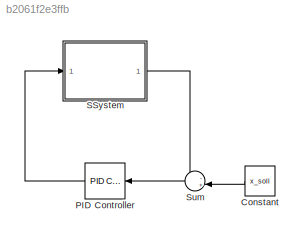
MODEL slx_b2061f2e3ffb
KIND model
BLOCK [Constant] Constant
  Value = x_soll
BLOCK [Reference] PID Controller  REF=simulink/Continuous/PID Controller
  AntiWindupMode = none
  Controller = PID
  ControllerParametersSource = internal
  D = 88.1677030624935
  DGainOutDataTypeStr = Inherit: Inherit via internal rule
  DOutMax = []
  DOutMin = []
  DParamDataTypeStr = Inherit: Inherit via internal rule
  DParamMax = []
  DParamMin = []
  DProdOutDataTypeStr = Inherit: Inherit via internal rule
  DifferentiatorICPrevScaledInput = 0
  DifferentiatorOutDataTypeStr = Inherit: Inherit via internal rule
  DifferentiatorOutMax = []
  DifferentiatorOutMin = []
  ExternalReset = none
  FilterContinuousStateAttributes = ''
  FilterMethod = Forward Euler
  FilterOutDataTypeStr = Inherit: Inherit via internal rule
  FilterOutMax = []
  FilterOutMin = []
  FilterRTWStateStorageClass = Auto
  FilterStateMustResolveToSignalObject = off
  Form = Parallel
  I = 10.2563359586177
  IGainOutDataTypeStr = Inherit: Inherit via internal rule
  IOutMax = []
  IOutMin = []
  IParamDataTypeStr = Inherit: Inherit via internal rule
  IParamMax = []
  IParamMin = []
  IProdOutDataTypeStr = Inherit: Inherit via internal rule
  IgnoreLimit = off
  InitialConditionForFilter = 0
  InitialConditionForIntegrator = 0
  InitialConditionSource = internal
  IntegratorContinuousStateAttributes = ''
  IntegratorMethod = Forward Euler
  IntegratorOutDataTypeStr = Inherit: Inherit via internal rule
  IntegratorOutMax = []
  IntegratorOutMin = []
  IntegratorRTWStateStorageClass = Auto
  IntegratorStateMustResolveToSignalObject = off
  Kb = 1
  KbOutDataTypeStr = Inherit: Inherit via internal rule
  KbOutMax = []
  KbOutMin = []
  KbParamDataTypeStr = Inherit: Inherit via internal rule
  KbParamMax = []
  KbParamMin = []
  Kt = 1
  KtOutDataTypeStr = Inherit: Inherit via internal rule
  KtOutMax = []
  KtOutMin = []
  KtParamDataTypeStr = Inherit: Inherit via internal rule
  KtParamMax = []
  KtParamMin = []
  LimitOutput = on
  LinearizeAsGain = off
  LockScale = off
  LowerSaturationLimit = -80
  N = 996.227139608466
  NGainOutDataTypeStr = Inherit: Inherit via internal rule
  NOutMax = []
  NOutMin = []
  NParamDataTypeStr = Inherit: Inherit via internal rule
  NParamMax = []
  NParamMin = []
  NProdOutDataTypeStr = Inherit: Inherit via internal rule
  P = 141.186500513683
  PGainOutDataTypeStr = Inherit: Inherit via internal rule
  POutMax = []
  POutMin = []
  PParamDataTypeStr = Inherit: Inherit via internal rule
  PParamMax = []
  PParamMin = []
  PProdOutDataTypeStr = Inherit: Inherit via internal rule
  Ports = [1, 1]
  RndMeth = Floor
  SampleTime = -1
  SaturateOnIntegerOverflow = off
  SaturationOutDataTypeStr = Inherit: Same as input
  SaturationOutMax = []
  SaturationOutMin = []
  SourceBlock = simulink/Continuous/PID Controller
  SourceType = PID 1dof
  SumAccumDataTypeStr = Inherit: Inherit via internal rule
  SumDAccumDataTypeStr = Inherit: Inherit via internal rule
  SumDOutDataTypeStr = Inherit: Inherit via internal rule
  SumDOutMax = []
  SumDOutMin = []
  SumI1AccumDataTypeStr = Inherit: Inherit via internal rule
  SumI1OutDataTypeStr = Inherit: Inherit via internal rule
  SumI1OutMax = []
  SumI1OutMin = []
  SumI2AccumDataTypeStr = Inherit: Inherit via internal rule
  SumI2OutDataTypeStr = Inherit: Inherit via internal rule
  SumI2OutMax = []
  SumI2OutMin = []
  SumI3AccumDataTypeStr = Inherit: Inherit via internal rule
  SumI3OutDataTypeStr = Inherit: Inherit via internal rule
  SumI3OutMax = []
  SumI3OutMin = []
  SumOutDataTypeStr = Inherit: Inherit via internal rule
  SumOutMax = []
  SumOutMin = []
  TimeDomain = Continuous-time
  TrackingMode = off
  UpperSaturationLimit = 80
  UseFilter = on
  ZeroCross = on
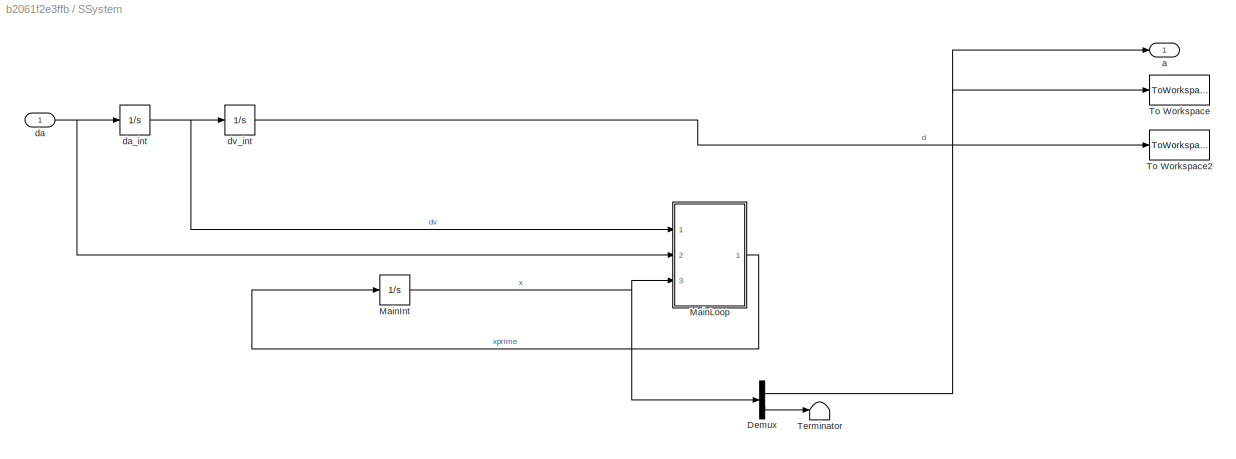
BLOCK [SubSystem] SSystem
  FunctionWithSeparateData = off
  MaskHideContents = off
  MinAlgLoopOccurrences = off
  Opaque = off
  Ports = [1, 1]
  PropExecContextOutsideSubsystem = off
  RTWSystemCode = Auto
  RequestExecContextInheritance = off
BLOCK [Demux] SSystem/Demux
  DisplayOption = bar
  Outputs = 2
  Ports = [1, 2]
BLOCK [Integrator] SSystem/MainInt
  InitialCondition = x_initial
  Ports = [1, 1]
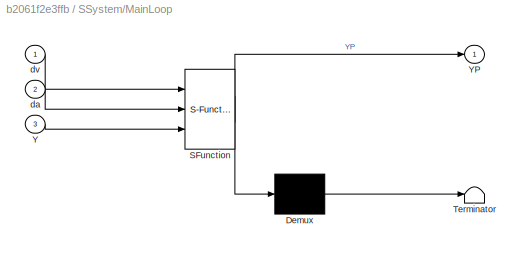
BLOCK [SubSystem] SSystem/MainLoop
  ErrorFcn = Stateflow.Translate.translate
  FunctionWithSeparateData = off
  MaskDescription = Embedded MATLAB block
  MaskDisplay = bgColor = Simulink.Root.ColorString2Rgb(get_param(gcbh, 'BackgroundColor')); image(imread('private/eml_membrane_16.png','png','BackgroundColor',bgColor(1:3)),'center'); disp([10 10 'MainLoop']);
  MaskHideContents = off
  MaskIconFrame = on
  MaskIconOpaque = off
  MaskIconRotate = none
  MaskIconUnits = normalized
  MaskPortRotate = default
  MaskSelfModifiable = on
  MaskType = Stateflow
  MinAlgLoopOccurrences = off
  Opaque = off
  PermitHierarchicalResolution = ParametersOnly
  Ports = [3, 1]
  PropExecContextOutsideSubsystem = off
  RTWSystemCode = Auto
  RequestExecContextInheritance = off
  SFBlockType = MATLAB Function
  TreatAsAtomicUnit = on
BLOCK [Demux] SSystem/MainLoop/ Demux 
  Outputs = 1
  Ports = [1, 1]
BLOCK [S-Function] SSystem/MainLoop/ SFunction 
  EnableBusSupport = on
  FunctionName = sf_sfun
  PortCounts = [3 2]
  Ports = [3, 2]
  SFunctionDeploymentMode = off
  Tag = Stateflow S-Function PID_Sim_2012a 2
BLOCK [Terminator] SSystem/MainLoop/ Terminator 
BLOCK [Inport] SSystem/MainLoop/Y
  IconDisplay = Port number
  Port = 3
BLOCK [Outport] SSystem/MainLoop/YP
  IconDisplay = Port number
BLOCK [Inport] SSystem/MainLoop/da
  IconDisplay = Port number
  Port = 2
BLOCK [Inport] SSystem/MainLoop/dv
  IconDisplay = Port number
BLOCK [Terminator] SSystem/Terminator
BLOCK [ToWorkspace] SSystem/To Workspace
  FixptAsFi = on
  MaxDataPoints = inf
  Ports = [1]
  SampleTime = -1
  SaveFormat = Timeseries
  VariableName = a
BLOCK [ToWorkspace] SSystem/To Workspace2
  FixptAsFi = on
  MaxDataPoints = inf
  Ports = [1]
  SampleTime = -1
  SaveFormat = Timeseries
  VariableName = d
BLOCK [Outport] SSystem/a
  IconDisplay = Port number
BLOCK [Inport] SSystem/da
  IconDisplay = Port number
BLOCK [Integrator] SSystem/da_int
  InitialCondition = d_initial(2)
  Ports = [1, 1]
BLOCK [Integrator] SSystem/dv_int
  InitialCondition = d_initial(1)
  Ports = [1, 1]
BLOCK [Sum] Sum
  IconShape = round
  InputSameDT = off
  Inputs = -+|
  OutDataTypeStr = Inherit: Inherit via internal rule
  Ports = [2, 1]
  SaturateOnIntegerOverflow = off
LINE Constant:1 -> Sum:2
LINE PID Controller:1 -> SSystem:1
NET SSystem/Demux:1 -> SSystem/To Workspace:1, SSystem/a:1
LINE SSystem/Demux:2 -> SSystem/Terminator:1
NET SSystem/MainInt:1 -> SSystem/Demux:1, SSystem/MainLoop:3
LINE SSystem/MainLoop:1 -> SSystem/MainInt:1
NET SSystem/da:1 -> SSystem/MainLoop:2, SSystem/da_int:1
NET SSystem/da_int:1 -> SSystem/MainLoop:1, SSystem/dv_int:1
LINE SSystem/dv_int:1 -> SSystem/To Workspace2:1
LINE SSystem:1 -> Sum:1
LINE Sum:1 -> PID Controller:1
note: NET lines group one-source signal fan-out (src -> all destinations, sorted); 1:1 wires keep LINE
